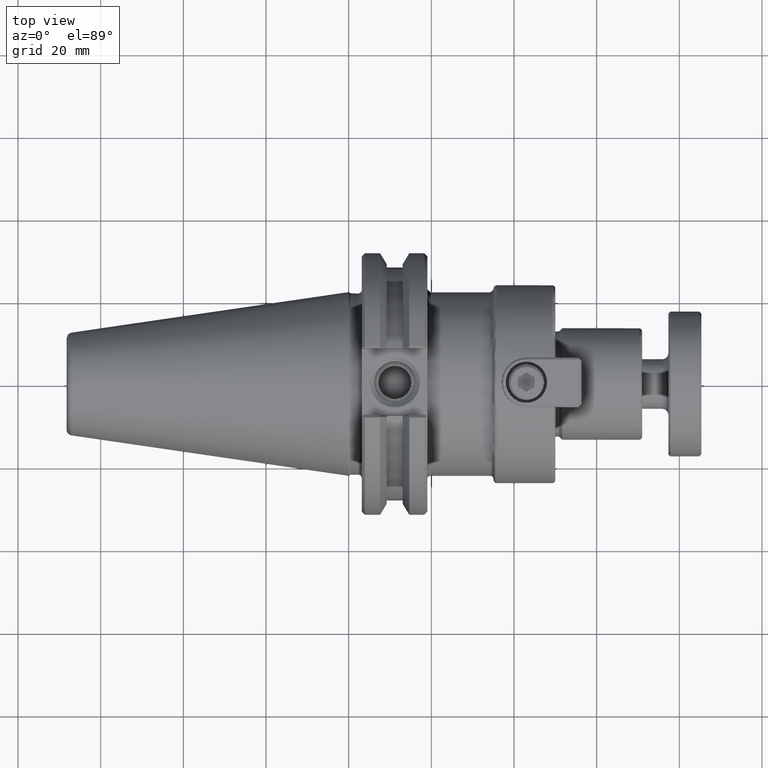
[diagram: clean part render]
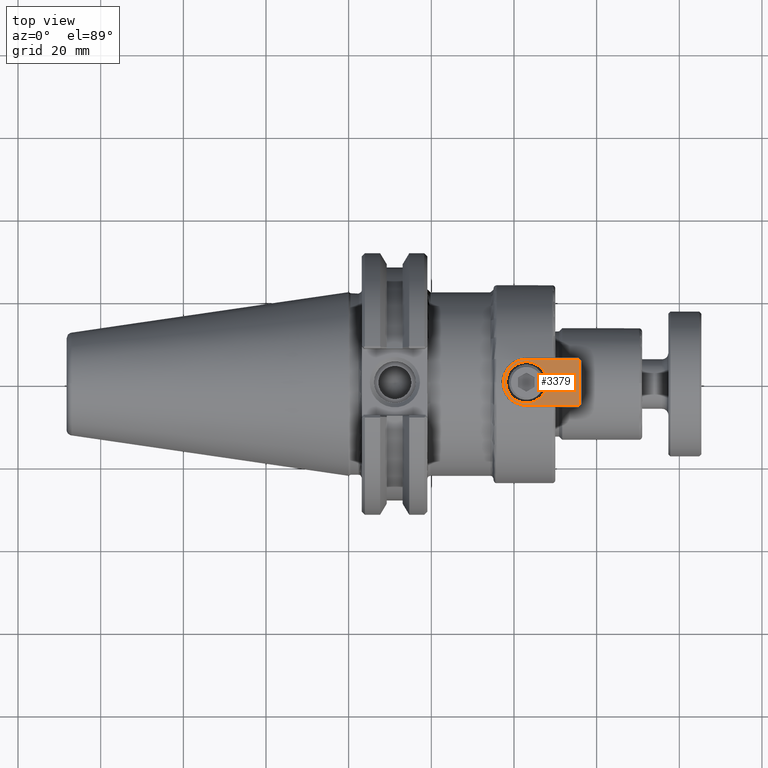
[diagram: same view with one face highlighted and labeled with its STEP entity id]
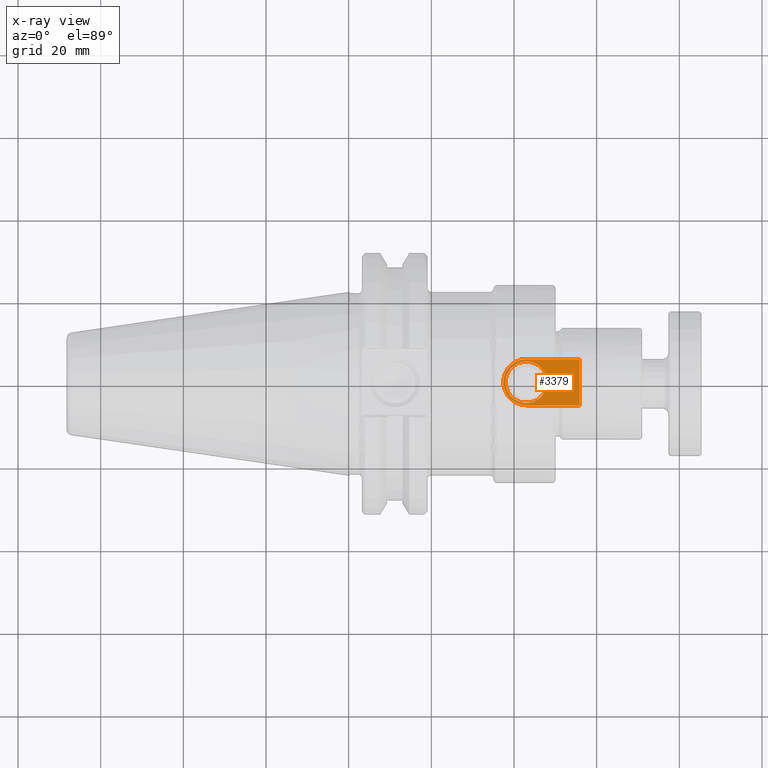
[diagram: x-ray of the same camera — body ghosted, the highlighted face saturated]
A machine part, top view. The second image highlights one B-rep face of the part: STEP entity #3379.
The next image is the same camera in x-ray: the body ghosted, the highlighted face saturated — about 0% of this face is hidden behind the body in this view.
In plain terms, the highlighted planar face has unit normal (-0, 0, 1).
Its self-contained STEP definition (entity closure, byte-faithful):
#185=FACE_BOUND('',#792,.T.);
#246=PLANE('',#3823);
#589=FACE_OUTER_BOUND('',#791,.T.);
#791=EDGE_LOOP('',(#3017,#3018,#3019,#3020));
#792=EDGE_LOOP('',(#3021));
#994=LINE('',#6859,#1220);
#1013=LINE('',#6903,#1239);
#1015=LINE('',#6910,#1241);
#1220=VECTOR('',#4578,0.393700787401575);
#1239=VECTOR('',#4623,0.393700787401575);
#1241=VECTOR('',#4633,0.393700787401575);
#1416=CIRCLE('',#3820,0.220236220472441);
#1418=CIRCLE('',#3824,0.197);
#1683=VERTEX_POINT('',#6847);
#1687=VERTEX_POINT('',#6857);
#1699=VERTEX_POINT('',#6901);
#1700=VERTEX_POINT('',#6905);
#1701=VERTEX_POINT('',#6912);
#2125=EDGE_CURVE('',#1687,#1683,#994,.T.);
#2147=EDGE_CURVE('',#1699,#1687,#1013,.T.);
#2149=EDGE_CURVE('',#1700,#1699,#1416,.T.);
#2151=EDGE_CURVE('',#1683,#1700,#1015,.T.);
#2152=EDGE_CURVE('',#1701,#1701,#1418,.T.);
#3017=ORIENTED_EDGE('',*,*,#2125,.F.);
#3018=ORIENTED_EDGE('',*,*,#2147,.F.);
#3019=ORIENTED_EDGE('',*,*,#2149,.F.);
#3020=ORIENTED_EDGE('',*,*,#2151,.F.);
#3021=ORIENTED_EDGE('',*,*,#2152,.T.);
#3379=ADVANCED_FACE('',(#589,#185),#246,.T.);
#3820=AXIS2_PLACEMENT_3D('',#6907,#4627,#4628);
#3823=AXIS2_PLACEMENT_3D('',#6911,#4634,#4635);
#3824=AXIS2_PLACEMENT_3D('',#6913,#4636,#4637);
#4578=DIRECTION('',(0.,-1.,0.));
#4623=DIRECTION('',(1.,0.,0.));
#4627=DIRECTION('center_axis',(0.,0.,-1.));
#4628=DIRECTION('ref_axis',(0.,1.,0.));
#4633=DIRECTION('',(-1.,3.339016615414E-16,0.));
#4634=DIRECTION('center_axis',(0.,0.,1.));
#4635=DIRECTION('ref_axis',(1.,0.,0.));
#4636=DIRECTION('center_axis',(0.,0.,-1.));
#4637=DIRECTION('ref_axis',(1.,0.,0.));
#6847=CARTESIAN_POINT('',(0.508622047244094,-0.220236220472441,0.));
#6857=CARTESIAN_POINT('',(0.508622047244094,0.220236220472441,0.));
#6859=CARTESIAN_POINT('',(0.508622047244094,-0.117618110236221,0.));
#6901=CARTESIAN_POINT('',(0.,0.220236220472441,0.));
#6903=CARTESIAN_POINT('',(0.355031535323148,0.220236220472441,0.));
#6905=CARTESIAN_POINT('',(-1.24774796623208E-16,-0.220236220472441,0.));
#6907=CARTESIAN_POINT('Origin',(0.,0.,0.));
#6910=CARTESIAN_POINT('',(0.0932205117011011,-0.220236220472441,0.));
#6911=CARTESIAN_POINT('Origin',(0.186441023402202,-1.09273919746571E-17,
0.));
#6912=CARTESIAN_POINT('',(-0.197,-2.41255419432029E-17,0.));
#6913=CARTESIAN_POINT('Origin',(-2.18547839493141E-17,0.,0.));